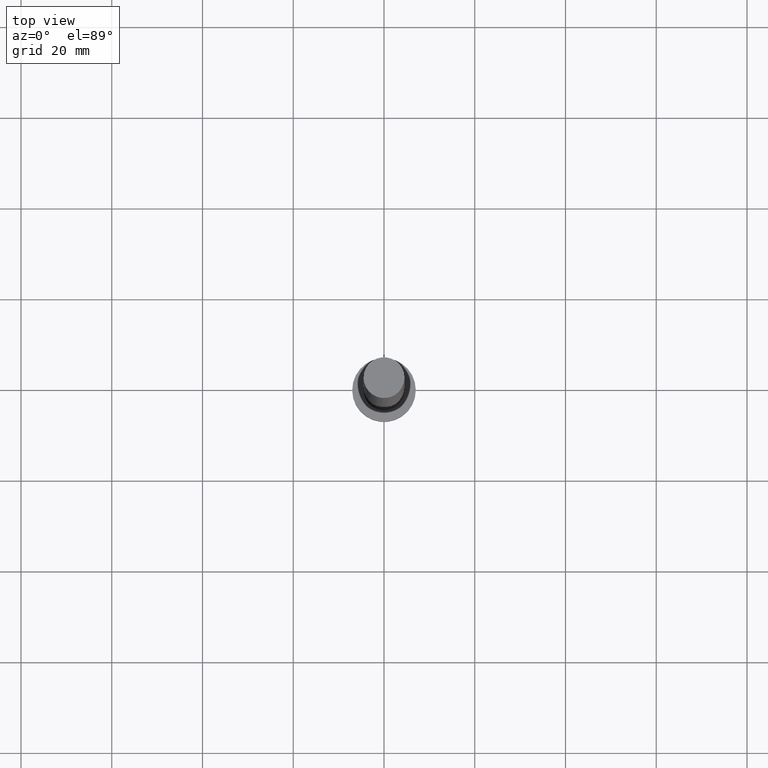
[diagram: clean part render]
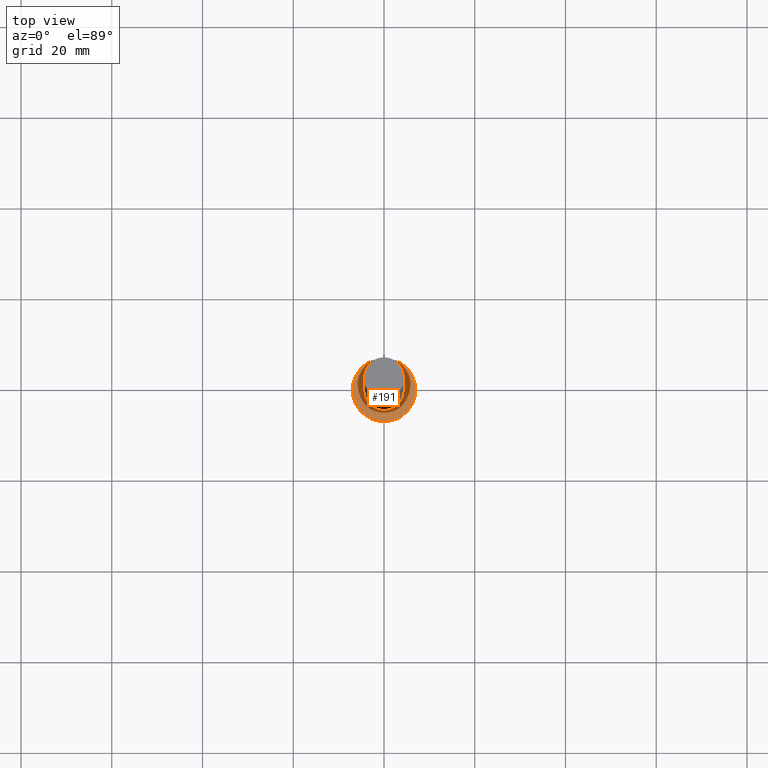
[diagram: same view with one face highlighted and labeled with its STEP entity id]
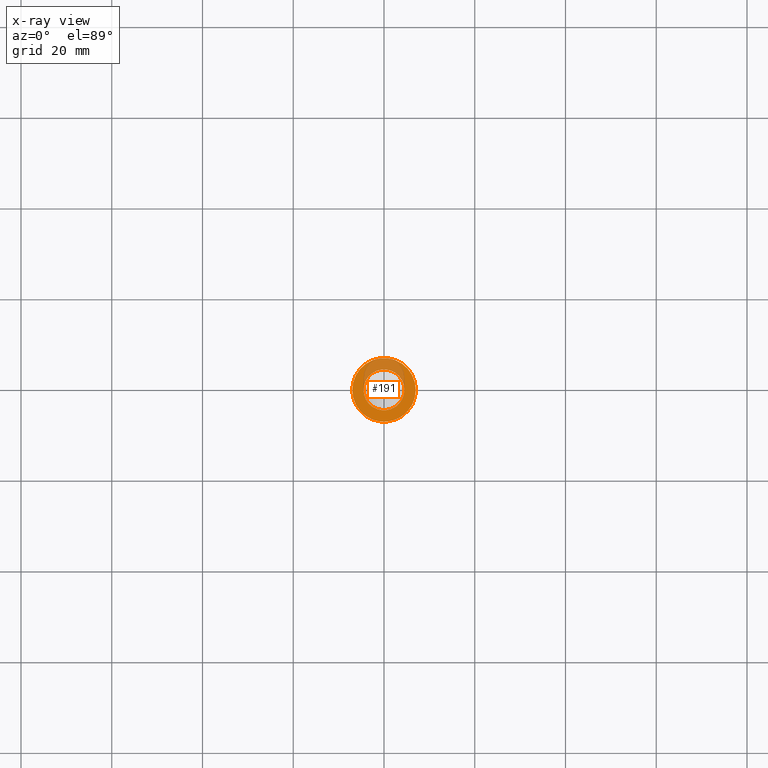
[diagram: x-ray of the same camera — body ghosted, the highlighted face saturated]
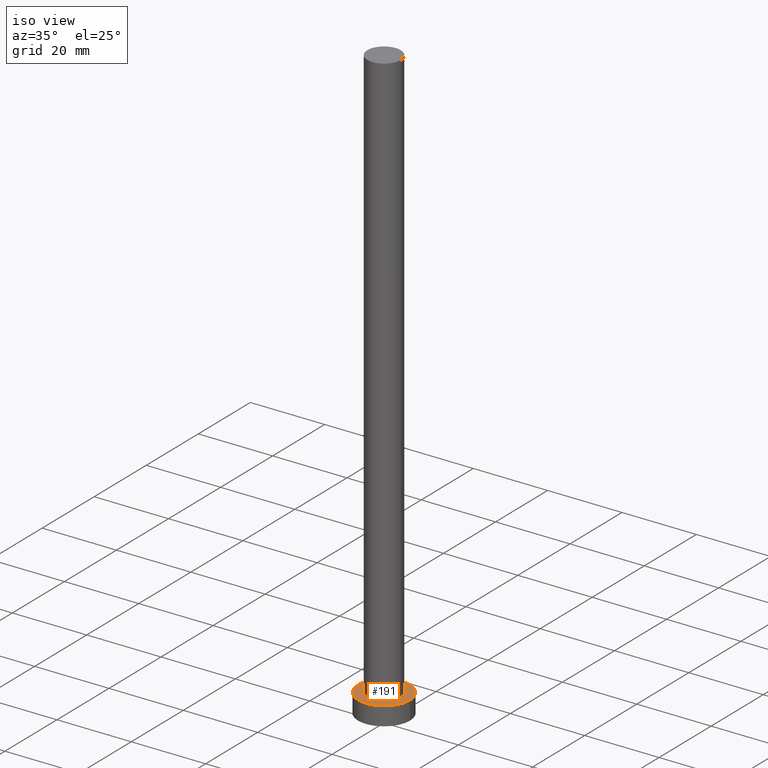
[diagram: same view with one face highlighted and labeled with its STEP entity id]
A machine part, top view. The second image highlights one B-rep face of the part: STEP entity #191.
The next image is the same camera in x-ray: the body ghosted, the highlighted face saturated — about 27% of this face is hidden behind the body in this view.
A second angle (iso view) of the same face is appended — the face is thin or edge-on in the first view.
In plain terms, the highlighted planar face has unit normal (0, 0, 1).
Its self-contained STEP definition (entity closure, byte-faithful):
#1 = FACE_OUTER_BOUND ( 'NONE', #74, .T. ) ;
#3 = AXIS2_PLACEMENT_3D ( 'NONE', #202, #183, #157 ) ;
#18 = DIRECTION ( 'NONE',  ( 1.000000000000000000, 0.000000000000000000, 0.000000000000000000 ) ) ;
#33 = EDGE_LOOP ( 'NONE', ( #134, #53 ) ) ;
#36 = ORIENTED_EDGE ( 'NONE', *, *, #97, .T. ) ;
#40 = PLANE ( 'NONE',  #144 ) ;
#52 = VERTEX_POINT ( 'NONE', #131 ) ;
#53 = ORIENTED_EDGE ( 'NONE', *, *, #223, .F. ) ;
#55 = CARTESIAN_POINT ( 'NONE',  ( -4.500000000000000888, 0.000000000000000000, 5.000000000000000000 ) ) ;
#58 = CIRCLE ( 'NONE', #95, 4.500000000000000888 ) ;
#60 = DIRECTION ( 'NONE',  ( 0.000000000000000000, 0.000000000000000000, 1.000000000000000000 ) ) ;
#61 = DIRECTION ( 'NONE',  ( 0.000000000000000000, 0.000000000000000000, 1.000000000000000000 ) ) ;
#74 = EDGE_LOOP ( 'NONE', ( #174, #36 ) ) ;
#77 = DIRECTION ( 'NONE',  ( 1.000000000000000000, 0.000000000000000000, 0.000000000000000000 ) ) ;
#81 = EDGE_CURVE ( 'NONE', #52, #211, #132, .T. ) ;
#92 = VERTEX_POINT ( 'NONE', #241 ) ;
#95 = AXIS2_PLACEMENT_3D ( 'NONE', #139, #177, #18 ) ;
#96 = CARTESIAN_POINT ( 'NONE',  ( 0.000000000000000000, 0.000000000000000000, 5.000000000000000000 ) ) ;
#97 = EDGE_CURVE ( 'NONE', #211, #52, #148, .T. ) ;
#109 = AXIS2_PLACEMENT_3D ( 'NONE', #96, #60, #77 ) ;
#131 = CARTESIAN_POINT ( 'NONE',  ( -7.000000000000000000, 0.000000000000000000, 5.000000000000000000 ) ) ;
#132 = CIRCLE ( 'NONE', #3, 7.000000000000000000 ) ;
#134 = ORIENTED_EDGE ( 'NONE', *, *, #141, .F. ) ;
#136 = VERTEX_POINT ( 'NONE', #55 ) ;
#137 = DIRECTION ( 'NONE',  ( 1.000000000000000000, 0.000000000000000000, 0.000000000000000000 ) ) ;
#139 = CARTESIAN_POINT ( 'NONE',  ( 0.000000000000000000, 0.000000000000000000, 5.000000000000000000 ) ) ;
#141 = EDGE_CURVE ( 'NONE', #136, #92, #152, .T. ) ;
#144 = AXIS2_PLACEMENT_3D ( 'NONE', #199, #61, #161 ) ;
#148 = CIRCLE ( 'NONE', #212, 7.000000000000000000 ) ;
#152 = CIRCLE ( 'NONE', #109, 4.500000000000000888 ) ;
#156 = CARTESIAN_POINT ( 'NONE',  ( 0.000000000000000000, 0.000000000000000000, 5.000000000000000000 ) ) ;
#157 = DIRECTION ( 'NONE',  ( 1.000000000000000000, 0.000000000000000000, 0.000000000000000000 ) ) ;
#161 = DIRECTION ( 'NONE',  ( 1.000000000000000000, 0.000000000000000000, -0.000000000000000000 ) ) ;
#174 = ORIENTED_EDGE ( 'NONE', *, *, #81, .T. ) ;
#177 = DIRECTION ( 'NONE',  ( 0.000000000000000000, 0.000000000000000000, 1.000000000000000000 ) ) ;
#183 = DIRECTION ( 'NONE',  ( 0.000000000000000000, 0.000000000000000000, 1.000000000000000000 ) ) ;
#191 = ADVANCED_FACE ( 'NONE', ( #217, #1 ), #40, .T. ) ;
#199 = CARTESIAN_POINT ( 'NONE',  ( 0.000000000000000000, 0.000000000000000000, 5.000000000000000000 ) ) ;
#202 = CARTESIAN_POINT ( 'NONE',  ( 0.000000000000000000, 0.000000000000000000, 5.000000000000000000 ) ) ;
#211 = VERTEX_POINT ( 'NONE', #218 ) ;
#212 = AXIS2_PLACEMENT_3D ( 'NONE', #156, #236, #137 ) ;
#217 = FACE_BOUND ( 'NONE', #33, .T. ) ;
#218 = CARTESIAN_POINT ( 'NONE',  ( 7.000000000000000000, 8.572527594031473190E-16, 5.000000000000000000 ) ) ;
#223 = EDGE_CURVE ( 'NONE', #92, #136, #58, .T. ) ;
#236 = DIRECTION ( 'NONE',  ( 0.000000000000000000, 0.000000000000000000, 1.000000000000000000 ) ) ;
#241 = CARTESIAN_POINT ( 'NONE',  ( 4.500000000000000888, 5.510910596163089556E-16, 5.000000000000000000 ) ) ;